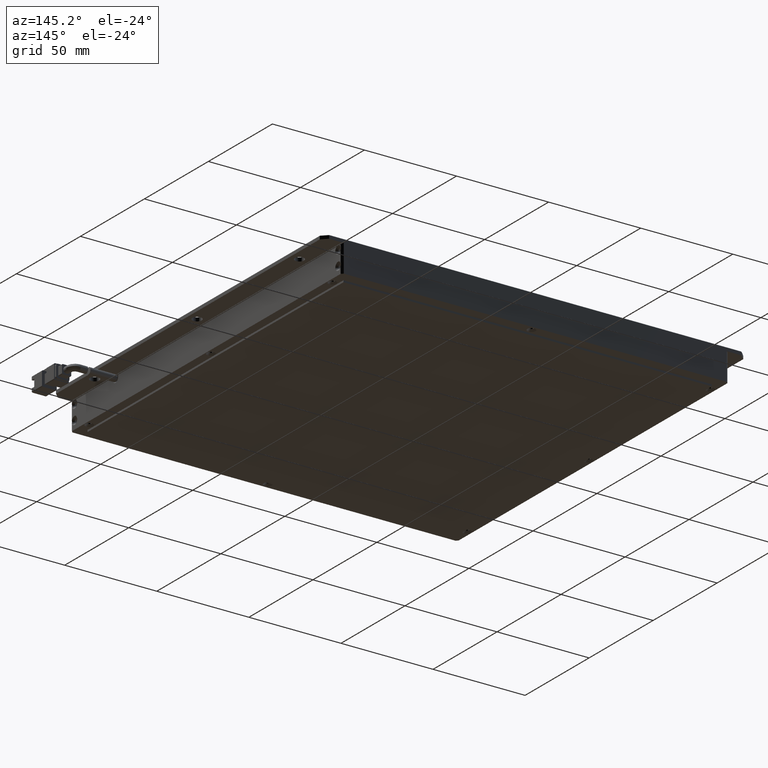
[diagram: clean part render]
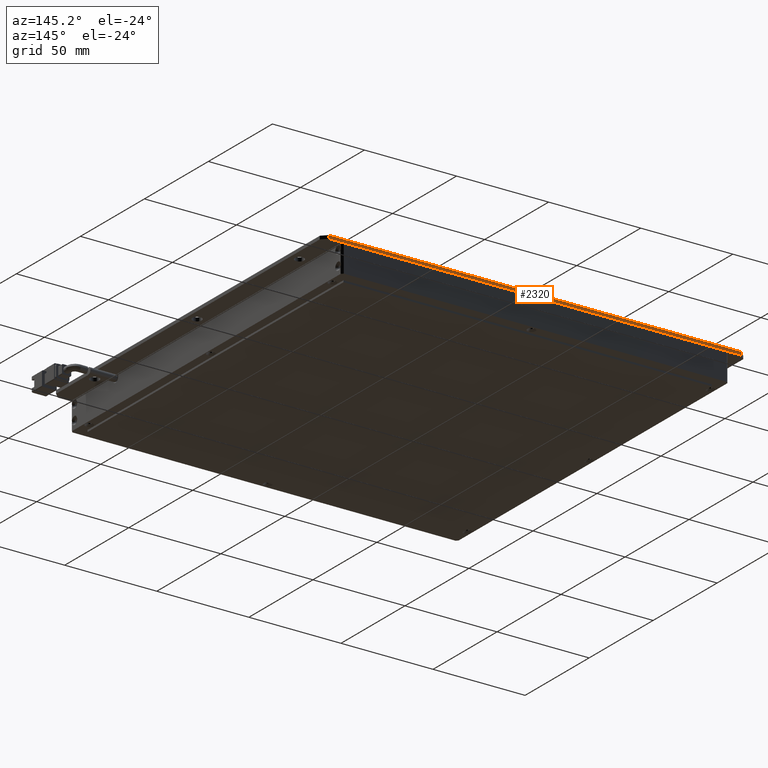
[diagram: same view with one face highlighted and labeled with its STEP entity id]
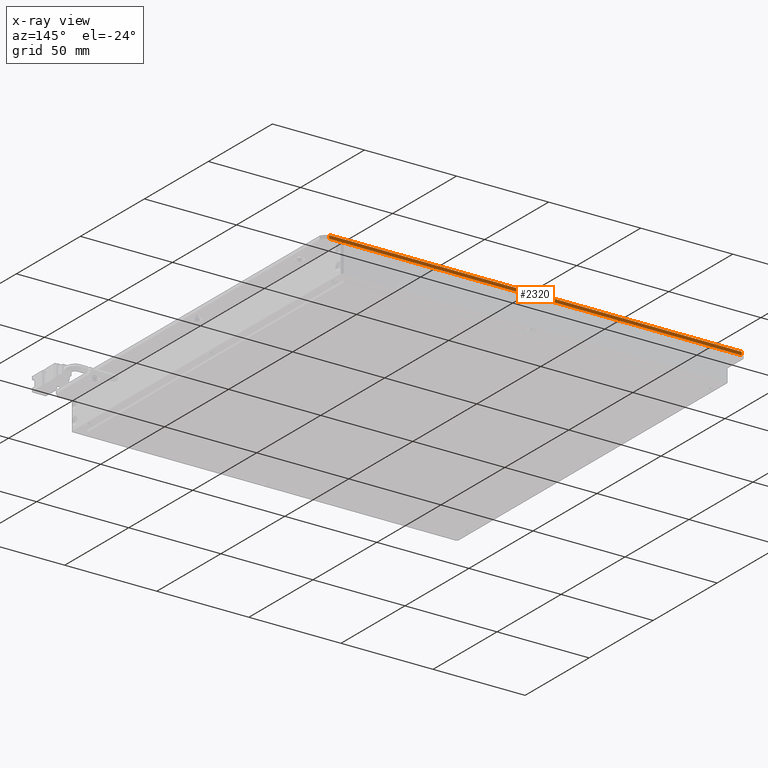
[diagram: x-ray of the same camera — body ghosted, the highlighted face saturated]
A machine part, auxiliary view. The second image highlights one B-rep face of the part: STEP entity #2320.
The next image is the same camera in x-ray: the body ghosted, the highlighted face saturated — about 0% of this face is hidden behind the body in this view.
In plain terms, the highlighted planar face has unit normal (0, -1, 0).
Its self-contained STEP definition (entity closure, byte-faithful):
#669 = CARTESIAN_POINT ( 'NONE',  ( -93.33424941752387800, 72.62124601721916400, 1.699999999976330700 ) ) ;
#2314 = CARTESIAN_POINT ( 'NONE',  ( 130.6657505824760500, 72.62124601721916400, -2.364753358408133700E-011 ) ) ;
#2320 = ADVANCED_FACE ( 'NONE', ( #21370 ), #14804, .F. ) ;
#2571 = EDGE_CURVE ( 'NONE', #4950, #11316, #14816, .T. ) ;
#2666 = VECTOR ( 'NONE', #5802, 1000.000000000000000 ) ;
#3139 = CARTESIAN_POINT ( 'NONE',  ( -93.33424941752387800, 72.62124601721916400, 1.999999999976353100 ) ) ;
#3243 = CARTESIAN_POINT ( 'NONE',  ( -93.33424941752386400, 72.62124601721915000, 1.699999999976324700 ) ) ;
#3621 = ORIENTED_EDGE ( 'NONE', *, *, #14719, .T. ) ;
#3683 = DIRECTION ( 'NONE',  ( -1.000000000000000000, -0.0000000000000000000, 0.0000000000000000000 ) ) ;
#4733 = VECTOR ( 'NONE', #13815, 1000.000000000000000 ) ;
#4950 = VERTEX_POINT ( 'NONE', #3243 ) ;
#5802 = DIRECTION ( 'NONE',  ( -0.0000000000000000000, 0.0000000000000000000, 1.000000000000000000 ) ) ;
#7372 = VECTOR ( 'NONE', #3683, 1000.000000000000000 ) ;
#8530 = VECTOR ( 'NONE', #21454, 1000.000000000000000 ) ;
#8984 = CARTESIAN_POINT ( 'NONE',  ( 133.6657505824760800, 72.62124601721916400, -2.364688306277784600E-011 ) ) ;
#9489 = ORIENTED_EDGE ( 'NONE', *, *, #13777, .F. ) ;
#10264 = DIRECTION ( 'NONE',  ( 0.0000000000000000000, -0.0000000000000000000, -1.000000000000000000 ) ) ;
#10959 = LINE ( 'NONE', #669, #8530 ) ;
#11316 = VERTEX_POINT ( 'NONE', #22223 ) ;
#12018 = LINE ( 'NONE', #8984, #7372 ) ;
#12777 = ORIENTED_EDGE ( 'NONE', *, *, #16652, .F. ) ;
#13450 = AXIS2_PLACEMENT_3D ( 'NONE', #3139, #20630, #10264 ) ;
#13777 = EDGE_CURVE ( 'NONE', #22408, #4950, #10959, .T. ) ;
#13815 = DIRECTION ( 'NONE',  ( 0.0000000000000000000, -0.0000000000000000000, -1.000000000000000000 ) ) ;
#14719 = EDGE_CURVE ( 'NONE', #14932, #11316, #12018, .T. ) ;
#14804 = PLANE ( 'NONE',  #13450 ) ;
#14816 = LINE ( 'NONE', #15692, #4733 ) ;
#14932 = VERTEX_POINT ( 'NONE', #2314 ) ;
#15692 = CARTESIAN_POINT ( 'NONE',  ( -93.33424941752387800, 72.62124601721916400, 1.999999999976353100 ) ) ;
#16231 = CARTESIAN_POINT ( 'NONE',  ( 130.6657505824760500, 72.62124601721916400, 1.999999999976353100 ) ) ;
#16570 = LINE ( 'NONE', #16231, #2666 ) ;
#16652 = EDGE_CURVE ( 'NONE', #14932, #22408, #16570, .T. ) ;
#16927 = EDGE_LOOP ( 'NONE', ( #9489, #12777, #3621, #22350 ) ) ;
#18914 = CARTESIAN_POINT ( 'NONE',  ( 130.6657505824760500, 72.62124601721916400, 1.699999999976338000 ) ) ;
#20630 = DIRECTION ( 'NONE',  ( 0.0000000000000000000, -1.000000000000000000, 0.0000000000000000000 ) ) ;
#21370 = FACE_OUTER_BOUND ( 'NONE', #16927, .T. ) ;
#21454 = DIRECTION ( 'NONE',  ( -1.000000000000000000, -0.0000000000000000000, -0.0000000000000000000 ) ) ;
#22223 = CARTESIAN_POINT ( 'NONE',  ( -93.33424941752387800, 72.62124601721916400, -2.364753358408133700E-011 ) ) ;
#22350 = ORIENTED_EDGE ( 'NONE', *, *, #2571, .F. ) ;
#22408 = VERTEX_POINT ( 'NONE', #18914 ) ;